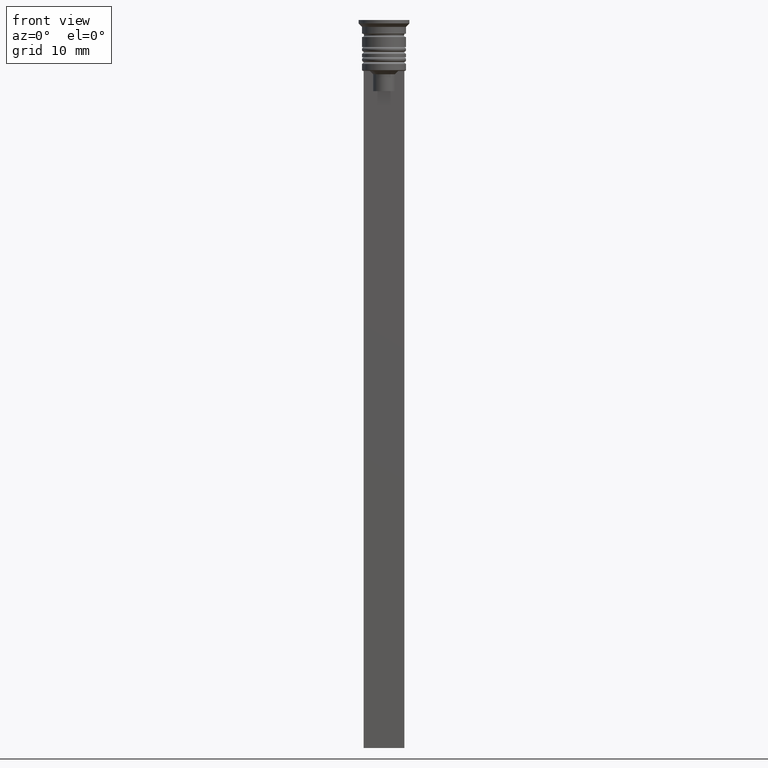
[diagram: clean part render]
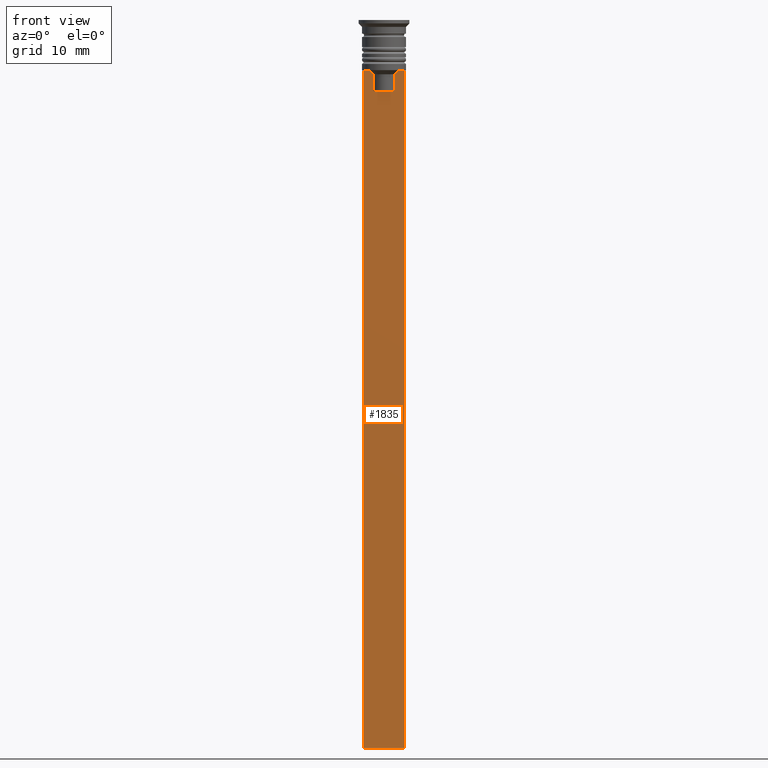
[diagram: same view with one face highlighted and labeled with its STEP entity id]
A machine part, front view. The second image highlights one B-rep face of the part: STEP entity #1835.
In plain terms, the highlighted planar face has unit normal (0, -1, -0).
Its self-contained STEP definition (entity closure, byte-faithful):
#8 = CARTESIAN_POINT ( 'NONE',  ( -2.121320343559647270, -0.3500000000000000333, -7.500000000000000000 ) ) ;
#34 = CARTESIAN_POINT ( 'NONE',  ( -1.612451549659713601, -0.3500000000000000333, -8.000000000000000000 ) ) ;
#60 = LINE ( 'NONE', #723, #589 ) ;
#71 = LINE ( 'NONE', #1055, #1239 ) ;
#89 = AXIS2_PLACEMENT_3D ( 'NONE', #796, #656, #2013 ) ;
#110 = LINE ( 'NONE', #783, #1067 ) ;
#119 = CARTESIAN_POINT ( 'NONE',  ( 2.999999999999995559, -0.3500000000000000333, -7.500000000000000000 ) ) ;
#126 = EDGE_CURVE ( 'NONE', #2113, #1605, #1220, .T. ) ;
#131 = VERTEX_POINT ( 'NONE', #197 ) ;
#145 = CARTESIAN_POINT ( 'NONE',  ( 2.999999999999995559, -0.3500000000000000333, -1.459304675784417915 ) ) ;
#163 = VERTEX_POINT ( 'NONE', #34 ) ;
#179 = VECTOR ( 'NONE', #2161, 1000.000000000000000 ) ;
#180 = ORIENTED_EDGE ( 'NONE', *, *, #559, .F. ) ;
#190 = ORIENTED_EDGE ( 'NONE', *, *, #257, .F. ) ;
#197 = CARTESIAN_POINT ( 'NONE',  ( 1.612451549659713601, -0.3500000000000000333, -8.000000000000000000 ) ) ;
#257 = EDGE_CURVE ( 'NONE', #1937, #163, #936, .T. ) ;
#324 = ORIENTED_EDGE ( 'NONE', *, *, #1994, .F. ) ;
#332 = ORIENTED_EDGE ( 'NONE', *, *, #905, .F. ) ;
#347 = ORIENTED_EDGE ( 'NONE', *, *, #1900, .T. ) ;
#355 = EDGE_CURVE ( 'NONE', #2098, #1160, #71, .T. ) ;
#401 = EDGE_LOOP ( 'NONE', ( #190, #332, #347, #1066, #1351, #1532, #908, #324, #1490, #180 ) ) ;
#430 = B_SPLINE_CURVE_WITH_KNOTS ( 'NONE', 3,
 ( #442, #612, #1286, #1793 ),
 .UNSPECIFIED., .F., .F.,
 ( 4, 4 ),
 ( 0.008600796474521228696, 0.009317962624906526645 ),
 .UNSPECIFIED. ) ;
#442 = CARTESIAN_POINT ( 'NONE',  ( 1.612451549659713601, -0.3500000000000000333, -8.000000000000000000 ) ) ;
#449 = LINE ( 'NONE', #145, #521 ) ;
#521 = VECTOR ( 'NONE', #1302, 1000.000000000000000 ) ;
#533 = DIRECTION ( 'NONE',  ( 0.000000000000000000, 0.000000000000000000, -1.000000000000000000 ) ) ;
#559 = EDGE_CURVE ( 'NONE', #163, #1892, #1128, .T. ) ;
#586 = EDGE_CURVE ( 'NONE', #1892, #1847, #1639, .T. ) ;
#589 = VECTOR ( 'NONE', #734, 1000.000000000000000 ) ;
#612 = CARTESIAN_POINT ( 'NONE',  ( 1.782523989086206795, -0.3500000000000000333, -7.833797837268088315 ) ) ;
#636 = EDGE_CURVE ( 'NONE', #131, #2113, #430, .T. ) ;
#649 = CARTESIAN_POINT ( 'NONE',  ( -1.952043732028444500, -0.3500000000000000333, -7.667018567316270961 ) ) ;
#656 = DIRECTION ( 'NONE',  ( 0.000000000000000000, -1.000000000000000000, -0.000000000000000000 ) ) ;
#723 = CARTESIAN_POINT ( 'NONE',  ( 1.612451549659713601, -0.3500000000000000333, 0.000000000000000000 ) ) ;
#734 = DIRECTION ( 'NONE',  ( -0.000000000000000000, -0.000000000000000000, 1.000000000000000000 ) ) ;
#783 = CARTESIAN_POINT ( 'NONE',  ( 2.999999999999995559, -0.3500000000000000333, -7.500000000000000000 ) ) ;
#796 = CARTESIAN_POINT ( 'NONE',  ( 2.999999999999995559, -0.3500000000000000333, -1.459304675784417915 ) ) ;
#814 = CARTESIAN_POINT ( 'NONE',  ( -3.000000000000004441, -0.3500000000000000333, -1.459304675784417915 ) ) ;
#870 = CARTESIAN_POINT ( 'NONE',  ( 2.121320343559647270, -0.3500000000000000333, -7.500000000000000000 ) ) ;
#905 = EDGE_CURVE ( 'NONE', #1523, #1937, #110, .T. ) ;
#908 = ORIENTED_EDGE ( 'NONE', *, *, #636, .F. ) ;
#936 = B_SPLINE_CURVE_WITH_KNOTS ( 'NONE', 3,
 ( #1678, #649, #1318, #1144 ),
 .UNSPECIFIED., .F., .F.,
 ( 4, 4 ),
 ( 0.003684653461239337929, 0.004398058763641257696 ),
 .UNSPECIFIED. ) ;
#1014 = EDGE_CURVE ( 'NONE', #1605, #2098, #449, .T. ) ;
#1055 = CARTESIAN_POINT ( 'NONE',  ( 2.999999999999995559, -0.3500000000000000333, -107.5000000000000000 ) ) ;
#1056 = DIRECTION ( 'NONE',  ( 1.000000000000000000, 0.000000000000000000, 0.000000000000000000 ) ) ;
#1060 = VECTOR ( 'NONE', #1056, 1000.000000000000000 ) ;
#1066 = ORIENTED_EDGE ( 'NONE', *, *, #355, .F. ) ;
#1067 = VECTOR ( 'NONE', #2081, 1000.000000000000000 ) ;
#1118 = CARTESIAN_POINT ( 'NONE',  ( -1.612451549659713601, -0.3500000000000000333, 0.000000000000000000 ) ) ;
#1128 = LINE ( 'NONE', #1118, #179 ) ;
#1130 = VECTOR ( 'NONE', #533, 1000.000000000000000 ) ;
#1144 = CARTESIAN_POINT ( 'NONE',  ( -1.612451549659713601, -0.3500000000000000333, -8.000000000000000000 ) ) ;
#1160 = VERTEX_POINT ( 'NONE', #2134 ) ;
#1220 = LINE ( 'NONE', #1717, #1060 ) ;
#1239 = VECTOR ( 'NONE', #1244, 1000.000000000000000 ) ;
#1244 = DIRECTION ( 'NONE',  ( -1.000000000000000000, 0.000000000000000000, 0.000000000000000000 ) ) ;
#1286 = CARTESIAN_POINT ( 'NONE',  ( 1.952040775369266346, -0.3500000000000000333, -7.667021484535463394 ) ) ;
#1302 = DIRECTION ( 'NONE',  ( 0.000000000000000000, 0.000000000000000000, -1.000000000000000000 ) ) ;
#1308 = CARTESIAN_POINT ( 'NONE',  ( -1.612451549659713601, -0.3500000000000000333, -10.49999999999999822 ) ) ;
#1310 = DIRECTION ( 'NONE',  ( 1.000000000000000000, 0.000000000000000000, 0.000000000000000000 ) ) ;
#1318 = CARTESIAN_POINT ( 'NONE',  ( -1.782527878033862478, -0.3500000000000000333, -7.833794036819864637 ) ) ;
#1351 = ORIENTED_EDGE ( 'NONE', *, *, #1014, .F. ) ;
#1398 = CARTESIAN_POINT ( 'NONE',  ( -3.000000000000004441, -0.3500000000000000333, -7.500000000000000000 ) ) ;
#1490 = ORIENTED_EDGE ( 'NONE', *, *, #586, .F. ) ;
#1523 = VERTEX_POINT ( 'NONE', #1398 ) ;
#1532 = ORIENTED_EDGE ( 'NONE', *, *, #126, .F. ) ;
#1534 = CARTESIAN_POINT ( 'NONE',  ( 2.999999999999995559, -0.3500000000000000333, -107.5000000000000000 ) ) ;
#1605 = VERTEX_POINT ( 'NONE', #119 ) ;
#1636 = CARTESIAN_POINT ( 'NONE',  ( 1.612451549659713601, -0.3500000000000000333, -10.49999999999999822 ) ) ;
#1639 = LINE ( 'NONE', #1955, #1693 ) ;
#1655 = LINE ( 'NONE', #814, #1130 ) ;
#1678 = CARTESIAN_POINT ( 'NONE',  ( -2.121320343559647270, -0.3500000000000000333, -7.500000000000000000 ) ) ;
#1693 = VECTOR ( 'NONE', #1310, 1000.000000000000000 ) ;
#1717 = CARTESIAN_POINT ( 'NONE',  ( 2.999999999999995559, -0.3500000000000000333, -7.500000000000000000 ) ) ;
#1793 = CARTESIAN_POINT ( 'NONE',  ( 2.121320343559647270, -0.3500000000000000333, -7.500000000000000000 ) ) ;
#1835 = ADVANCED_FACE ( 'NONE', ( #2176 ), #2167, .T. ) ;
#1847 = VERTEX_POINT ( 'NONE', #1636 ) ;
#1892 = VERTEX_POINT ( 'NONE', #1308 ) ;
#1900 = EDGE_CURVE ( 'NONE', #1523, #1160, #1655, .T. ) ;
#1937 = VERTEX_POINT ( 'NONE', #8 ) ;
#1955 = CARTESIAN_POINT ( 'NONE',  ( 0.000000000000000000, -0.3500000000000000333, -10.49999999999999822 ) ) ;
#1994 = EDGE_CURVE ( 'NONE', #1847, #131, #60, .T. ) ;
#2013 = DIRECTION ( 'NONE',  ( 0.000000000000000000, 0.000000000000000000, -1.000000000000000000 ) ) ;
#2081 = DIRECTION ( 'NONE',  ( 1.000000000000000000, 0.000000000000000000, 0.000000000000000000 ) ) ;
#2098 = VERTEX_POINT ( 'NONE', #1534 ) ;
#2113 = VERTEX_POINT ( 'NONE', #870 ) ;
#2134 = CARTESIAN_POINT ( 'NONE',  ( -3.000000000000004441, -0.3500000000000000333, -107.5000000000000000 ) ) ;
#2161 = DIRECTION ( 'NONE',  ( 0.000000000000000000, 0.000000000000000000, -1.000000000000000000 ) ) ;
#2167 = PLANE ( 'NONE',  #89 ) ;
#2176 = FACE_OUTER_BOUND ( 'NONE', #401, .T. ) ;